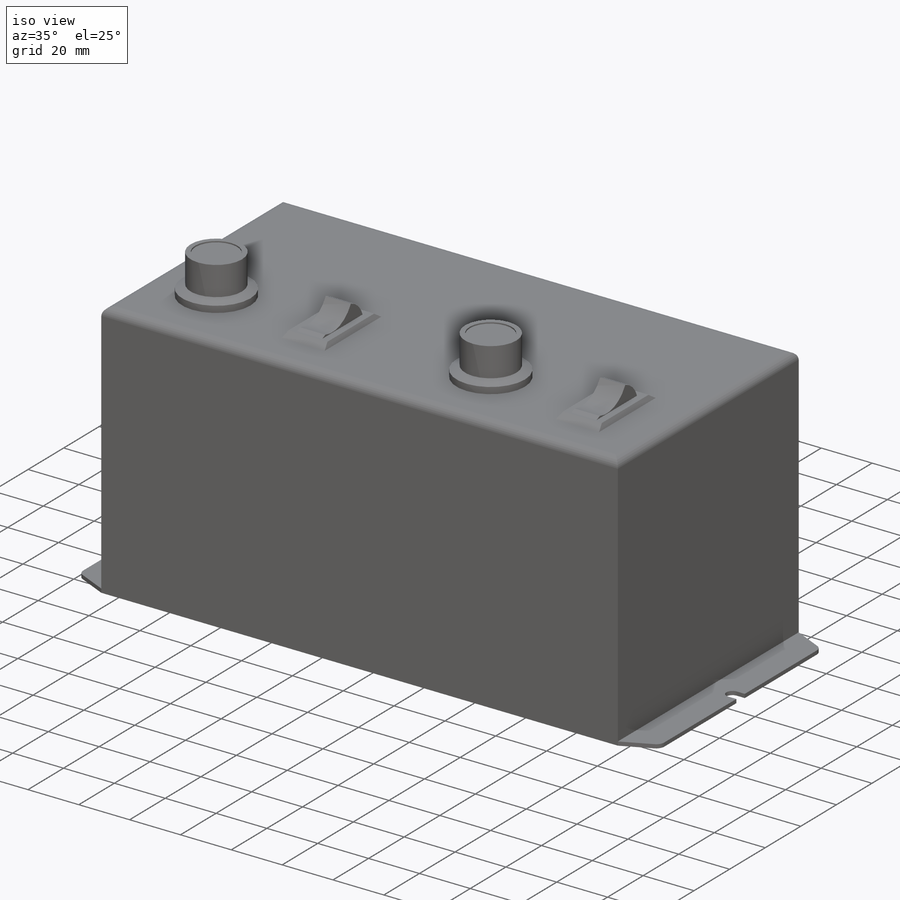
[diagram: iso view]
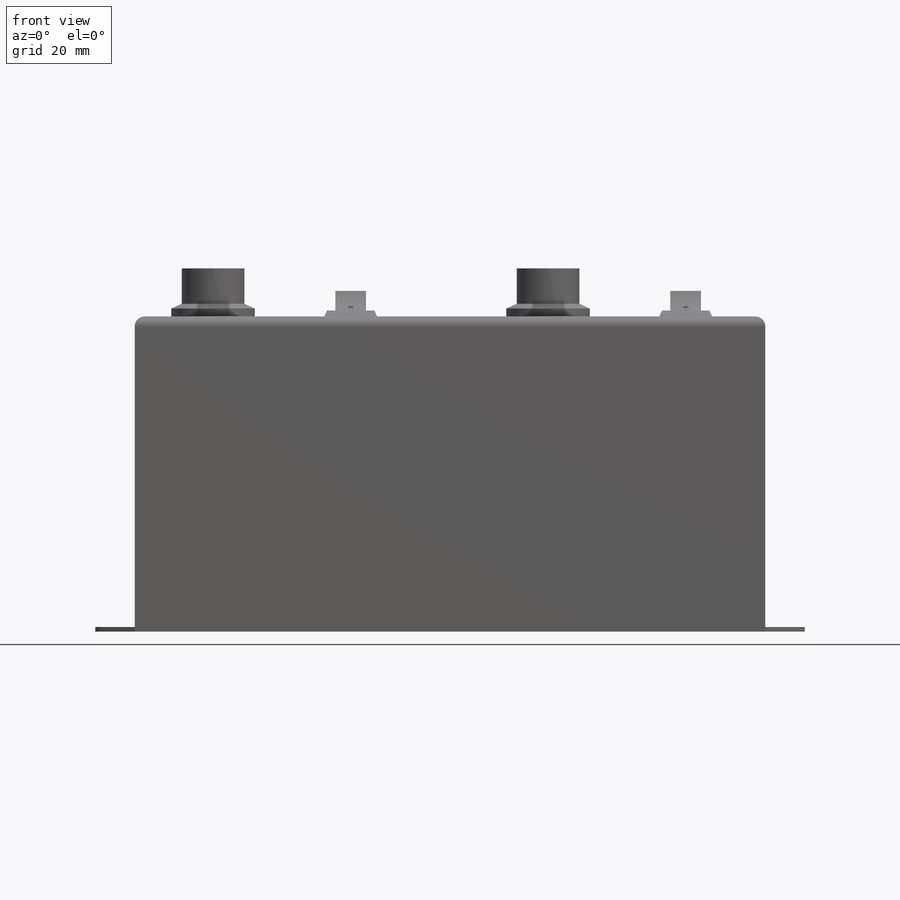
[diagram: front view]
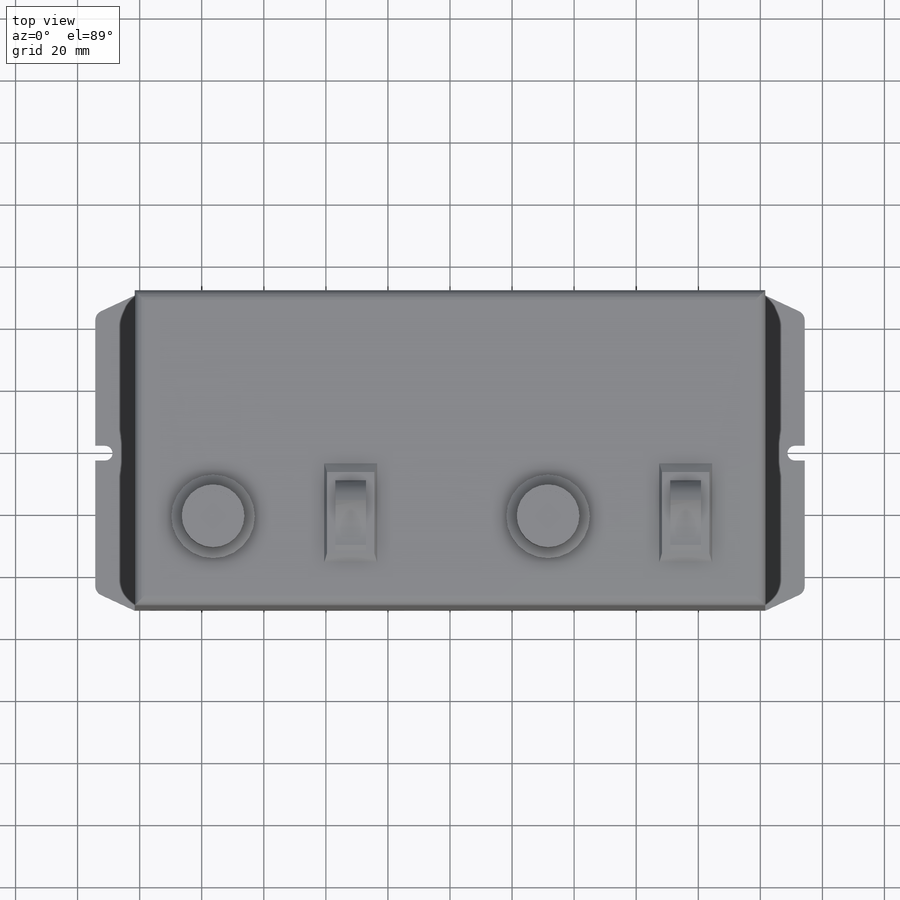
[diagram: top view]
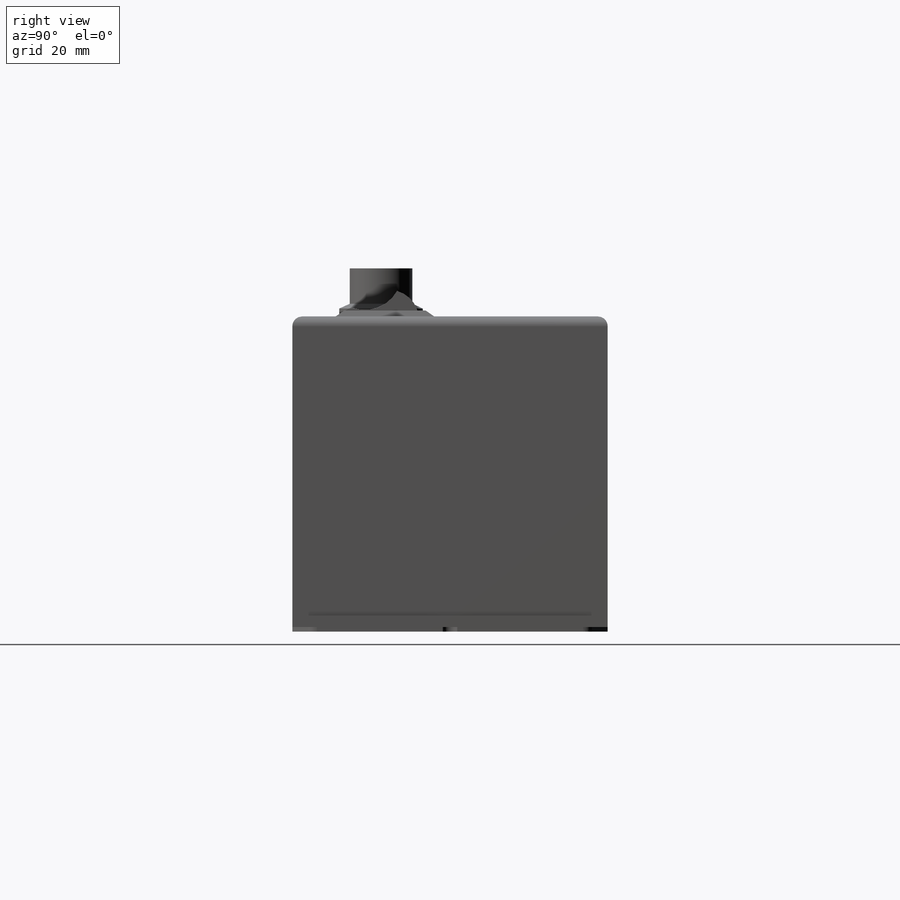
[diagram: right view]
SOLIDWORKS PART (.sldprt)
format: sldprt  version: not decoded by parser v0  size: 491,520 bytes
history: native  units: mm
features: sketch x7, extrude x3, plane x3, material x1, revolve x1, pattern_linear x1, fillet x1 (+12 scaffold rows collapsed)
feature tree (29):
  scaffold x12  (default folders/planes/origin — collapsed)
  material  "Material <not specified>"
  sketch  "Sketch2"
  sketch  "param"  dims[D1=101.6mm D2=203.2mm]
  extrude  "Extrude1"  Depth=101.6mm
  sketch  "Sketch3"  dims[c1.D2=3.175mm c1.D5=~2.38125mm c1.D1=12.7mm c1.D3=~11.295904mm c2.D3=25.0deg c2.D4=4.7625mm c2.D5=3.175mm]
  extrude  "Extrude2"  Depth=1.4986mm
  plane  "Plane1"  Offset=22.225mm
  sketch  "Sketch4"  dims[D1=~76.358723mm D2=2.54mm D3=~26.911246mm D4=11.43mm D5=15.494mm D6=~16.497246mm D7=~20.180246mm D8=0.508mm]
  revolve  "Revolve1"  Angle=360deg
  sketch  "Sketch5"  dims[D1=17.018mm D2=31.75mm D3=20.955mm D4=32.004mm]
  plane  "Plane2"  Offset=1.905mm
  sketch  "Sketch6"  dims[c1.D1=~10.339072mm c2.D1=90.0deg c3.D1=15.24mm c3.D2=26.1874mm]
  plane  "Plane3"  Offset=32.004mm
  sketch  "Sketch7"  dims[c1.D2=11.9126mm c1.D3=9.525mm c1.D8=11.9126mm c1.D7=9.525mm c1.D12=9.525mm c1.D1=20.955mm c1.D4=~2.946481mm c1.D5=10.414mm c1.D6=10.414mm c2.D7=14.3002mm c2.D8=~23.56919mm c2.D9=~2.109935mm c2.D4=1.2192mm c3.D8=6.7564mm c3.D9=0.635mm c3.D4=0.635mm c3.D6=1.2192mm c4.D9=10.414mm c4.D10=14.3002mm c4.D11=~1.379444mm c4.D12=~7.313563mm c4.D4=1.2192mm c4.D6=0.7874mm]
  extrude  "Extrude3"  Depth=9.906mm
  pattern_linear  "LPattern1"  Count1=2 Count2=1 Spacing1=107.95mm Spacing2=50mm
  fillet  "Fillet1"  Radius=3.175mm
decode coverage: 12 of 13 modeling features carry decoded parameters
note: ~ marks probable driven/reference dimensions
note: suppression state not decoded; provenance and decode notes live in map.json
